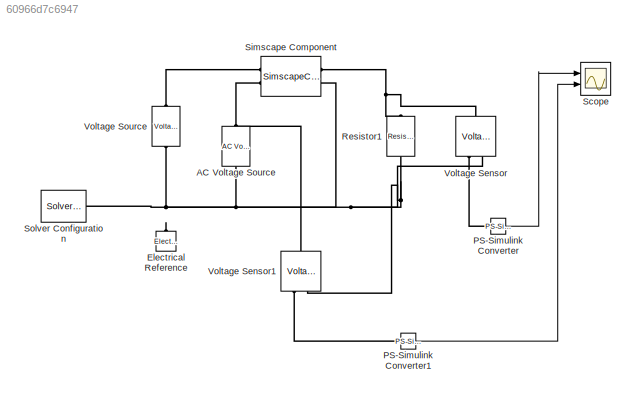
MODEL slx_60966d7c6947
KIND model
CONFIG AbsTol = auto
CONFIG EnableMultiTasking = off
CONFIG FixedStep = auto
CONFIG MaxStep = auto
CONFIG MinStep = auto
CONFIG RelTol = 1e-3
CONFIG SampleTimeConstraint = Unconstrained
CONFIG SolverName = VariableStepAuto
CONFIG StartTime = 0.0
CONFIG StopTime = 1
BLOCK [Reference] AC Voltage Source  REF=fl_lib/Electrical/Electrical Sources/AC Voltage Source
  NameLocation = right
  Ports = [0, 0, 0, 0, 0, 1, 1]
  SourceBlock = fl_lib/Electrical/Electrical Sources/AC Voltage Source
  SourceProductBaseCode = SS
  SourceType = AC Voltage Source
BLOCK [Reference] Electrical Reference  REF=fl_lib/Electrical/Electrical Elements/Electrical Reference
  NameLocation = right
  Ports = [0, 0, 0, 0, 0, 1]
  SourceBlock = fl_lib/Electrical/Electrical Elements/Electrical Reference
  SourceProductBaseCode = SS
  SourceType = Electrical Reference
BLOCK [Reference] PS-Simulink Converter  REF=nesl_utility/PS-Simulink
Converter
  Ports = [0, 1, 0, 0, 0, 1]
  SourceBlock = nesl_utility/PS-Simulink\nConverter
  SourceProductBaseCode = PW,SS
  SourceType = PS-Simulink\nConverter
BLOCK [Reference] PS-Simulink Converter1  REF=nesl_utility/PS-Simulink
Converter
  Ports = [0, 1, 0, 0, 0, 1]
  SourceBlock = nesl_utility/PS-Simulink\nConverter
  SourceProductBaseCode = PW,SS
  SourceType = PS-Simulink\nConverter
BLOCK [Reference] Resistor1  REF=fl_lib/Electrical/Electrical Elements/Resistor
  NameLocation = left
  Ports = [0, 0, 0, 0, 0, 1, 1]
  SourceBlock = fl_lib/Electrical/Electrical Elements/Resistor
  SourceProductBaseCode = SS
  SourceType = Resistor
BLOCK [Scope] Scope
  Floating = off
  NumInputPorts = 2
  Ports = [2]
  ScopeSpecificationString = Simulink.scopes.TimeScopeBlockCfg('CurrentConfiguration', extmgr.ConfigurationSet(extmgr.Configuration('Core','General UI',true),extmgr.Configuration('Core','Source UI',true),extmgr.Configuration('Sources','WiredSimulink',true),extmgr.Configuration('Visuals','Time Domain',true,'SerializedDisplays',{struct('MinYLimReal','5.036','MaxYLimReal','5.70334','YLabelReal','','MinYLimMag','5.036','MaxYLimMa...<+1951ch>
BLOCK [SimscapeComponentBlock] Simscape Component
  ClassName = OnSwtich
  ComponentPath = OnSwtich
  ComponentVariantNames = ["OnSwtich"]
  ComponentVariants = ["OnSwtich"]
  CopyFcn = simscape.engine.sli.internal.componentblockcallback(gcbh,'COPY')
  InternalSimscapePortConfiguration = {"Bottom":[],"Left":[{"id":"p","label":"p","type":"foundation.electrical.electrical"},{"id":"vp","label":"vp","type":"foundation.electrical.electrical"}],"Right":[{"id":"n","label":"n","type":"foundation.electrical.electrical"},{"id":"vn","label":"vn","type":"foundation.electrical.electrical"}],"Top":[]}
  K = 238.0
  K_conf = compiletime
  K_unit = V^2/A
  MaskType = OnSwtich
  Ports = [0, 0, 0, 0, 0, 2, 2]
  PreCopyFcn = simscape.engine.sli.internal.componentblockcallback(gcbh,'PRECOPY')
  PreDeleteFcn = simscape.engine.sli.internal.componentblockcallback(gcbh,'PREDELETE')
  SchemaVersion = 1
  SourceFile = OnSwtich
  i = 0
  i2 = 0
  i2_nominal_specify = off
  i2_nominal_unit = A
  i2_nominal_value = 1
  i2_priority = None
  i2_specify = off
  i2_unit = A
  i_nominal_specify = off
  i_nominal_unit = A
  i_nominal_value = 1
  i_priority = None
  i_specify = off
  i_unit = A
  v = 0
  v_nominal_specify = off
  v_nominal_unit = V
  v_nominal_value = 1
  v_priority = None
  v_specify = off
  v_unit = V
  vbs = 1.8
  vbs_conf = compiletime
  vbs_unit = V
  vsd = 0
  vsd_nominal_specify = off
  vsd_nominal_unit = V
  vsd_nominal_value = 1
  vsd_priority = None
  vsd_specify = off
  vsd_unit = V
  vth = 0.56
  vth_conf = compiletime
  vth_unit = V
BLOCK [Reference] Solver Configuration  REF=nesl_utility/Solver
Configuration
  Ports = [0, 0, 0, 0, 0, 0, 1]
  SourceBlock = nesl_utility/Solver\nConfiguration
  SourceProductBaseCode = PW,SS
  SourceType = Solver\nConfiguration
BLOCK [Reference] Voltage Sensor  REF=fl_lib/Electrical/Electrical Sensors/Voltage Sensor
  NameLocation = right
  Ports = [0, 0, 0, 0, 0, 1, 2]
  SourceBlock = fl_lib/Electrical/Electrical Sensors/Voltage Sensor
  SourceProductBaseCode = SS
  SourceType = Voltage Sensor
BLOCK [Reference] Voltage Sensor1  REF=fl_lib/Electrical/Electrical Sensors/Voltage Sensor
  NameLocation = right
  Ports = [0, 0, 0, 0, 0, 1, 2]
  SourceBlock = fl_lib/Electrical/Electrical Sensors/Voltage Sensor
  SourceProductBaseCode = SS
  SourceType = Voltage Sensor
BLOCK [Reference] Voltage Source  REF=ee_lib/Sources/Voltage Source
  NameLocation = right
  Ports = [0, 0, 0, 0, 0, 1, 1]
  SourceBlock = ee_lib/Sources/Voltage Source
  SourceProductBaseCode = PS
  SourceType = Voltage Source
LINE PS-Simulink Converter1:1 -> Scope:2
LINE PS-Simulink Converter:1 -> Scope:1
PNET net1: AC Voltage Source:LConn1 -- Simscape Component:LConn2 -- Voltage Sensor1:LConn1
PNET net2: AC Voltage Source:RConn1 -- Electrical Reference:LConn1 -- Resistor1:RConn1 -- Simscape Component:RConn2 -- Solver Configuration:RConn1 -- Voltage Sensor1:RConn2 -- Voltage Sensor:RConn2 -- Voltage Source:RConn1
PLINE PS-Simulink Converter1:LConn1 -- Voltage Sensor1:RConn1
PLINE PS-Simulink Converter:LConn1 -- Voltage Sensor:RConn1
PNET net3: Resistor1:LConn1 -- Simscape Component:RConn1 -- Voltage Sensor:LConn1
PLINE Simscape Component:LConn1 -- Voltage Source:LConn1
note: PNET lines group multi-terminal physical nets as a canonical sorted terminal list (undirected conserving connections); 2-terminal nets keep the pairwise PLINE form
